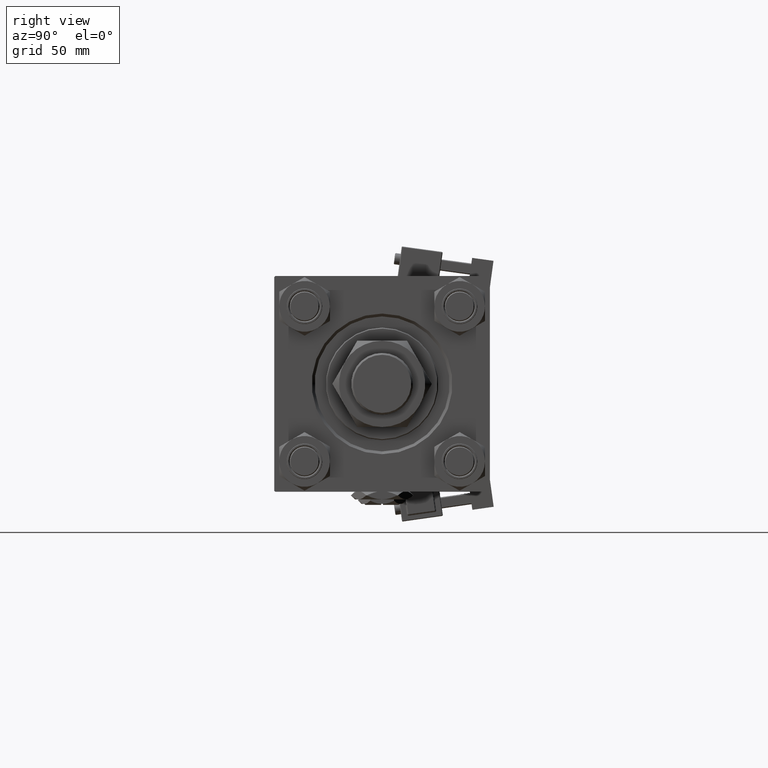
[diagram: clean part render]
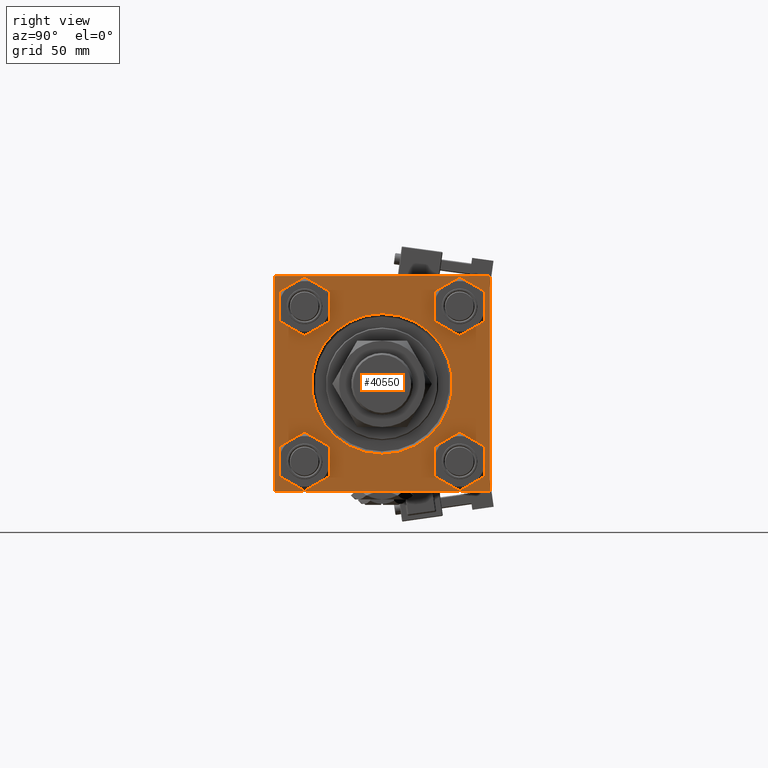
[diagram: same view with one face highlighted and labeled with its STEP entity id]
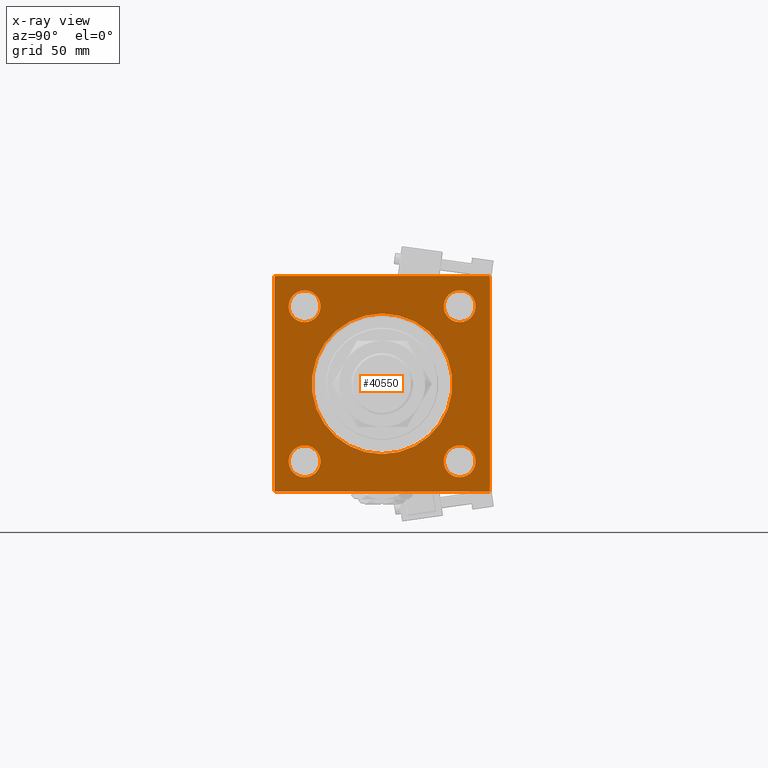
[diagram: x-ray of the same camera — body ghosted, the highlighted face saturated]
A machine part, right view. The second image highlights one B-rep face of the part: STEP entity #40550.
The next image is the same camera in x-ray: the body ghosted, the highlighted face saturated — about 0% of this face is hidden behind the body in this view.
In plain terms, the highlighted planar face has unit normal (-1, 0, 0).
Its self-contained STEP definition (entity closure, byte-faithful):
#10 = CARTESIAN_POINT ( 'NONE',  ( 179.0000000000000000, 57.00000000000000000, -57.49999999999996447 ) ) ;
#363 = AXIS2_PLACEMENT_3D ( 'NONE', #23969, #7178, #33331 ) ;
#434 = DIRECTION ( 'NONE',  ( 0.000000000000000000, 0.000000000000000000, 1.000000000000000000 ) ) ;
#727 = CIRCLE ( 'NONE', #4357, 8.500000000000007105 ) ;
#843 = LINE ( 'NONE', #13929, #42049 ) ;
#1460 = EDGE_LOOP ( 'NONE', ( #52978, #8351 ) ) ;
#1956 = DIRECTION ( 'NONE',  ( 0.000000000000000000, 0.000000000000000000, 1.000000000000000000 ) ) ;
#2187 = VECTOR ( 'NONE', #12786, 1000.000000000000000 ) ;
#2290 = VERTEX_POINT ( 'NONE', #37038 ) ;
#2673 = DIRECTION ( 'NONE',  ( 0.000000000000000000, 0.000000000000000000, -1.000000000000000000 ) ) ;
#3338 = CARTESIAN_POINT ( 'NONE',  ( 179.0000000000000000, -41.34999999999998721, -49.85000000000002274 ) ) ;
#4136 = ORIENTED_EDGE ( 'NONE', *, *, #26038, .T. ) ;
#4357 = AXIS2_PLACEMENT_3D ( 'NONE', #54742, #45658, #1956 ) ;
#5210 = EDGE_LOOP ( 'NONE', ( #20971, #45823 ) ) ;
#5328 = VERTEX_POINT ( 'NONE', #32682 ) ;
#6087 = EDGE_CURVE ( 'NONE', #2290, #49979, #44868, .T. ) ;
#6233 = EDGE_CURVE ( 'NONE', #47444, #51921, #843, .T. ) ;
#6642 = DIRECTION ( 'NONE',  ( -0.000000000000000000, 0.000000000000000000, 1.000000000000000000 ) ) ;
#6892 = EDGE_CURVE ( 'NONE', #49979, #2290, #13100, .T. ) ;
#7019 = CARTESIAN_POINT ( 'NONE',  ( 179.0000000000000000, 41.34999999999999432, -49.85000000000001563 ) ) ;
#7178 = DIRECTION ( 'NONE',  ( -1.000000000000000000, 0.000000000000000000, -0.000000000000000000 ) ) ;
#7593 = EDGE_CURVE ( 'NONE', #47444, #5328, #34363, .T. ) ;
#7603 = EDGE_CURVE ( 'NONE', #36535, #19467, #9323, .T. ) ;
#8290 = EDGE_CURVE ( 'NONE', #52318, #39439, #31279, .T. ) ;
#8351 = ORIENTED_EDGE ( 'NONE', *, *, #34787, .T. ) ;
#8367 = ORIENTED_EDGE ( 'NONE', *, *, #34886, .T. ) ;
#8451 = LINE ( 'NONE', #38280, #27905 ) ;
#8637 = CARTESIAN_POINT ( 'NONE',  ( 179.0000000000000000, 0.000000000000000000, 0.000000000000000000 ) ) ;
#9323 = LINE ( 'NONE', #45069, #10391 ) ;
#9546 = DIRECTION ( 'NONE',  ( -1.000000000000000000, 0.000000000000000000, -0.000000000000000000 ) ) ;
#9868 = DIRECTION ( 'NONE',  ( 0.000000000000000000, 0.000000000000000000, 1.000000000000000000 ) ) ;
#10068 = CARTESIAN_POINT ( 'NONE',  ( 179.0000000000000000, 0.000000000000000000, -37.50000000000000711 ) ) ;
#10391 = VECTOR ( 'NONE', #36019, 1000.000000000000000 ) ;
#12130 = AXIS2_PLACEMENT_3D ( 'NONE', #30680, #17631, #46345 ) ;
#12236 = DIRECTION ( 'NONE',  ( 0.000000000000000000, 0.000000000000000000, 1.000000000000000000 ) ) ;
#12786 = DIRECTION ( 'NONE',  ( 0.000000000000000000, -1.000000000000000000, -1.206764157201257291E-16 ) ) ;
#13036 = DIRECTION ( 'NONE',  ( -0.000000000000000000, -0.7071067811865328068, -0.7071067811865622277 ) ) ;
#13100 = CIRCLE ( 'NONE', #12130, 8.500000000000007105 ) ;
#13695 = DIRECTION ( 'NONE',  ( -1.000000000000000000, 0.000000000000000000, -0.000000000000000000 ) ) ;
#13790 = ORIENTED_EDGE ( 'NONE', *, *, #35894, .T. ) ;
#13929 = CARTESIAN_POINT ( 'NONE',  ( 179.0000000000000000, 57.50000000000000000, -56.99999999999994316 ) ) ;
#15057 = DIRECTION ( 'NONE',  ( 0.000000000000000000, 0.7071067811865721087, -0.7071067811865230368 ) ) ;
#16190 = VECTOR ( 'NONE', #37974, 1000.000000000000000 ) ;
#17574 = EDGE_CURVE ( 'NONE', #39439, #52318, #20767, .T. ) ;
#17631 = DIRECTION ( 'NONE',  ( -1.000000000000000000, 0.000000000000000000, -0.000000000000000000 ) ) ;
#17855 = DIRECTION ( 'NONE',  ( -1.000000000000000000, 0.000000000000000000, -0.000000000000000000 ) ) ;
#18307 = EDGE_CURVE ( 'NONE', #24478, #38927, #19879, .T. ) ;
#18592 = AXIS2_PLACEMENT_3D ( 'NONE', #8637, #29950, #51238 ) ;
#18732 = DIRECTION ( 'NONE',  ( -0.000000000000000000, 0.7071067811865279218, 0.7071067811865672237 ) ) ;
#19467 = VERTEX_POINT ( 'NONE', #25844 ) ;
#19624 = CIRCLE ( 'NONE', #53166, 8.500000000000007105 ) ;
#19819 = EDGE_CURVE ( 'NONE', #19467, #22684, #21244, .T. ) ;
#19879 = CIRCLE ( 'NONE', #27142, 8.500000000000007105 ) ;
#20595 = CARTESIAN_POINT ( 'NONE',  ( 179.0000000000000000, -57.49999999999999289, 56.99999999999996447 ) ) ;
#20666 = CARTESIAN_POINT ( 'NONE',  ( 179.0000000000000000, 57.50000000000000000, 57.50000000000000711 ) ) ;
#20767 = CIRCLE ( 'NONE', #56131, 37.50000000000000711 ) ;
#20971 = ORIENTED_EDGE ( 'NONE', *, *, #8290, .T. ) ;
#21244 = LINE ( 'NONE', #20666, #16190 ) ;
#22034 = DIRECTION ( 'NONE',  ( -1.000000000000000000, 0.000000000000000000, -0.000000000000000000 ) ) ;
#22148 = EDGE_LOOP ( 'NONE', ( #37587, #13790, #30204, #38732, #30666, #28258, #46020, #47547 ) ) ;
#22684 = VERTEX_POINT ( 'NONE', #40473 ) ;
#23308 = LINE ( 'NONE', #27813, #33313 ) ;
#23347 = DIRECTION ( 'NONE',  ( -1.000000000000000000, 0.000000000000000000, -0.000000000000000000 ) ) ;
#23969 = CARTESIAN_POINT ( 'NONE',  ( 179.0000000000000000, -41.34999999999998721, -41.35000000000000853 ) ) ;
#24272 = CARTESIAN_POINT ( 'NONE',  ( 179.0000000000000000, 57.50000000000000000, 57.50000000000000711 ) ) ;
#24310 = AXIS2_PLACEMENT_3D ( 'NONE', #43954, #17855, #9868 ) ;
#24478 = VERTEX_POINT ( 'NONE', #7019 ) ;
#24548 = FACE_BOUND ( 'NONE', #5210, .T. ) ;
#25844 = CARTESIAN_POINT ( 'NONE',  ( 179.0000000000000000, 56.99999999999997158, 57.50000000000000711 ) ) ;
#25987 = VECTOR ( 'NONE', #27169, 1000.000000000000000 ) ;
#26038 = EDGE_CURVE ( 'NONE', #43600, #32600, #42033, .T. ) ;
#26630 = VERTEX_POINT ( 'NONE', #49641 ) ;
#26815 = CARTESIAN_POINT ( 'NONE',  ( 179.0000000000000000, -41.34999999999998721, -32.85000000000000142 ) ) ;
#27142 = AXIS2_PLACEMENT_3D ( 'NONE', #39934, #9546, #35688 ) ;
#27169 = DIRECTION ( 'NONE',  ( 0.000000000000000000, 0.000000000000000000, -1.000000000000000000 ) ) ;
#27654 = AXIS2_PLACEMENT_3D ( 'NONE', #51961, #42584, #12236 ) ;
#27813 = CARTESIAN_POINT ( 'NONE',  ( 179.0000000000000000, -56.99999999999995737, -57.49999999999997868 ) ) ;
#27905 = VECTOR ( 'NONE', #13036, 1000.000000000000000 ) ;
#28234 = PLANE ( 'NONE',  #37117 ) ;
#28258 = ORIENTED_EDGE ( 'NONE', *, *, #7603, .T. ) ;
#29076 = FACE_BOUND ( 'NONE', #42583, .T. ) ;
#29155 = CIRCLE ( 'NONE', #50010, 8.500000000000007105 ) ;
#29950 = DIRECTION ( 'NONE',  ( -1.000000000000000000, 0.000000000000000000, -0.000000000000000000 ) ) ;
#30204 = ORIENTED_EDGE ( 'NONE', *, *, #7593, .F. ) ;
#30434 = EDGE_CURVE ( 'NONE', #44575, #26630, #35419, .T. ) ;
#30666 = ORIENTED_EDGE ( 'NONE', *, *, #41862, .F. ) ;
#30680 = CARTESIAN_POINT ( 'NONE',  ( 179.0000000000000000, 41.34999999999999432, 41.35000000000000142 ) ) ;
#31222 = EDGE_CURVE ( 'NONE', #47744, #55348, #19624, .T. ) ;
#31279 = CIRCLE ( 'NONE', #18592, 37.50000000000000711 ) ;
#32466 = EDGE_LOOP ( 'NONE', ( #34041, #46657 ) ) ;
#32518 = FACE_BOUND ( 'NONE', #32466, .T. ) ;
#32600 = VERTEX_POINT ( 'NONE', #3338 ) ;
#32682 = CARTESIAN_POINT ( 'NONE',  ( 179.0000000000000000, -56.99999999999995737, -57.49999999999997868 ) ) ;
#33313 = VECTOR ( 'NONE', #15057, 1000.000000000000000 ) ;
#33331 = DIRECTION ( 'NONE',  ( 0.000000000000000000, 0.000000000000000000, 1.000000000000000000 ) ) ;
#33779 = ORIENTED_EDGE ( 'NONE', *, *, #53449, .T. ) ;
#33923 = EDGE_CURVE ( 'NONE', #22684, #44575, #8451, .T. ) ;
#34041 = ORIENTED_EDGE ( 'NONE', *, *, #6087, .T. ) ;
#34304 = CIRCLE ( 'NONE', #24310, 8.500000000000007105 ) ;
#34363 = LINE ( 'NONE', #51658, #2187 ) ;
#34787 = EDGE_CURVE ( 'NONE', #38927, #24478, #727, .T. ) ;
#34886 = EDGE_CURVE ( 'NONE', #55348, #47744, #34304, .T. ) ;
#35419 = LINE ( 'NONE', #44195, #25987 ) ;
#35688 = DIRECTION ( 'NONE',  ( 0.000000000000000000, 0.000000000000000000, 1.000000000000000000 ) ) ;
#35894 = EDGE_CURVE ( 'NONE', #26630, #5328, #23308, .T. ) ;
#36019 = DIRECTION ( 'NONE',  ( 0.000000000000000000, -0.7071067811865672237, 0.7071067811865279218 ) ) ;
#36535 = VERTEX_POINT ( 'NONE', #41794 ) ;
#37038 = CARTESIAN_POINT ( 'NONE',  ( 179.0000000000000000, 41.34999999999999432, 32.84999999999999432 ) ) ;
#37054 = FACE_BOUND ( 'NONE', #1460, .T. ) ;
#37117 = AXIS2_PLACEMENT_3D ( 'NONE', #45543, #41837, #6642 ) ;
#37587 = ORIENTED_EDGE ( 'NONE', *, *, #30434, .T. ) ;
#37974 = DIRECTION ( 'NONE',  ( 0.000000000000000000, -1.000000000000000000, -1.206764157201257291E-16 ) ) ;
#38280 = CARTESIAN_POINT ( 'NONE',  ( 179.0000000000000000, -57.49999999999999289, 56.99999999999996447 ) ) ;
#38732 = ORIENTED_EDGE ( 'NONE', *, *, #6233, .T. ) ;
#38927 = VERTEX_POINT ( 'NONE', #40304 ) ;
#39439 = VERTEX_POINT ( 'NONE', #49860 ) ;
#39934 = CARTESIAN_POINT ( 'NONE',  ( 179.0000000000000000, 41.34999999999999432, -41.35000000000000142 ) ) ;
#40304 = CARTESIAN_POINT ( 'NONE',  ( 179.0000000000000000, 41.34999999999999432, -32.84999999999999432 ) ) ;
#40473 = CARTESIAN_POINT ( 'NONE',  ( 179.0000000000000000, -56.99999999999998579, 57.49999999999999289 ) ) ;
#40550 = ADVANCED_FACE ( 'NONE', ( #29076, #37054, #32518, #54616, #24548, #49808 ), #28234, .F. ) ;
#41401 = CARTESIAN_POINT ( 'NONE',  ( 179.0000000000000000, -41.34999999999998721, 49.85000000000002274 ) ) ;
#41794 = CARTESIAN_POINT ( 'NONE',  ( 179.0000000000000000, 57.50000000000000000, 57.00000000000000711 ) ) ;
#41837 = DIRECTION ( 'NONE',  ( -1.000000000000000000, 0.000000000000000000, -0.000000000000000000 ) ) ;
#41862 = EDGE_CURVE ( 'NONE', #36535, #51921, #50930, .T. ) ;
#42033 = CIRCLE ( 'NONE', #363, 8.500000000000007105 ) ;
#42049 = VECTOR ( 'NONE', #18732, 1000.000000000000000 ) ;
#42225 = CARTESIAN_POINT ( 'NONE',  ( 179.0000000000000000, 57.50000000000000000, -56.99999999999994316 ) ) ;
#42583 = EDGE_LOOP ( 'NONE', ( #33779, #4136 ) ) ;
#42584 = DIRECTION ( 'NONE',  ( -1.000000000000000000, 0.000000000000000000, -0.000000000000000000 ) ) ;
#42752 = CARTESIAN_POINT ( 'NONE',  ( 179.0000000000000000, -41.34999999999998721, 32.85000000000000142 ) ) ;
#43600 = VERTEX_POINT ( 'NONE', #26815 ) ;
#43954 = CARTESIAN_POINT ( 'NONE',  ( 179.0000000000000000, -41.34999999999998721, 41.35000000000000853 ) ) ;
#44195 = CARTESIAN_POINT ( 'NONE',  ( 179.0000000000000000, -57.49999999999999289, 57.49999999999999289 ) ) ;
#44575 = VERTEX_POINT ( 'NONE', #20595 ) ;
#44868 = CIRCLE ( 'NONE', #27654, 8.500000000000007105 ) ;
#45069 = CARTESIAN_POINT ( 'NONE',  ( 179.0000000000000000, 56.99999999999997158, 57.50000000000000711 ) ) ;
#45156 = DIRECTION ( 'NONE',  ( 0.000000000000000000, 0.000000000000000000, 1.000000000000000000 ) ) ;
#45543 = CARTESIAN_POINT ( 'NONE',  ( 179.0000000000000000, 0.000000000000000000, 0.000000000000000000 ) ) ;
#45658 = DIRECTION ( 'NONE',  ( -1.000000000000000000, 0.000000000000000000, -0.000000000000000000 ) ) ;
#45823 = ORIENTED_EDGE ( 'NONE', *, *, #17574, .T. ) ;
#46020 = ORIENTED_EDGE ( 'NONE', *, *, #19819, .T. ) ;
#46345 = DIRECTION ( 'NONE',  ( 0.000000000000000000, 0.000000000000000000, 1.000000000000000000 ) ) ;
#46649 = ORIENTED_EDGE ( 'NONE', *, *, #31222, .T. ) ;
#46657 = ORIENTED_EDGE ( 'NONE', *, *, #6892, .T. ) ;
#46693 = CARTESIAN_POINT ( 'NONE',  ( 179.0000000000000000, 41.34999999999999432, 49.85000000000001563 ) ) ;
#47444 = VERTEX_POINT ( 'NONE', #10 ) ;
#47547 = ORIENTED_EDGE ( 'NONE', *, *, #33923, .T. ) ;
#47722 = DIRECTION ( 'NONE',  ( 0.000000000000000000, 0.000000000000000000, 1.000000000000000000 ) ) ;
#47744 = VERTEX_POINT ( 'NONE', #41401 ) ;
#49138 = CARTESIAN_POINT ( 'NONE',  ( 179.0000000000000000, -41.34999999999998721, 41.35000000000000853 ) ) ;
#49641 = CARTESIAN_POINT ( 'NONE',  ( 179.0000000000000000, -57.49999999999999289, -56.99999999999997868 ) ) ;
#49808 = FACE_OUTER_BOUND ( 'NONE', #22148, .T. ) ;
#49823 = VECTOR ( 'NONE', #2673, 1000.000000000000000 ) ;
#49860 = CARTESIAN_POINT ( 'NONE',  ( 179.0000000000000000, 4.592425496802575156E-15, 37.50000000000000711 ) ) ;
#49979 = VERTEX_POINT ( 'NONE', #46693 ) ;
#50010 = AXIS2_PLACEMENT_3D ( 'NONE', #55505, #22034, #434 ) ;
#50930 = LINE ( 'NONE', #24272, #49823 ) ;
#51238 = DIRECTION ( 'NONE',  ( 0.000000000000000000, 0.000000000000000000, 1.000000000000000000 ) ) ;
#51658 = CARTESIAN_POINT ( 'NONE',  ( 179.0000000000000000, 57.50000000000000000, -57.49999999999996447 ) ) ;
#51921 = VERTEX_POINT ( 'NONE', #42225 ) ;
#51961 = CARTESIAN_POINT ( 'NONE',  ( 179.0000000000000000, 41.34999999999999432, 41.35000000000000142 ) ) ;
#52318 = VERTEX_POINT ( 'NONE', #10068 ) ;
#52827 = CARTESIAN_POINT ( 'NONE',  ( 179.0000000000000000, 0.000000000000000000, 0.000000000000000000 ) ) ;
#52978 = ORIENTED_EDGE ( 'NONE', *, *, #18307, .T. ) ;
#53166 = AXIS2_PLACEMENT_3D ( 'NONE', #49138, #23347, #45156 ) ;
#53449 = EDGE_CURVE ( 'NONE', #32600, #43600, #29155, .T. ) ;
#54136 = EDGE_LOOP ( 'NONE', ( #8367, #46649 ) ) ;
#54616 = FACE_BOUND ( 'NONE', #54136, .T. ) ;
#54742 = CARTESIAN_POINT ( 'NONE',  ( 179.0000000000000000, 41.34999999999999432, -41.35000000000000142 ) ) ;
#55348 = VERTEX_POINT ( 'NONE', #42752 ) ;
#55505 = CARTESIAN_POINT ( 'NONE',  ( 179.0000000000000000, -41.34999999999998721, -41.35000000000000853 ) ) ;
#56131 = AXIS2_PLACEMENT_3D ( 'NONE', #52827, #13695, #47722 ) ;